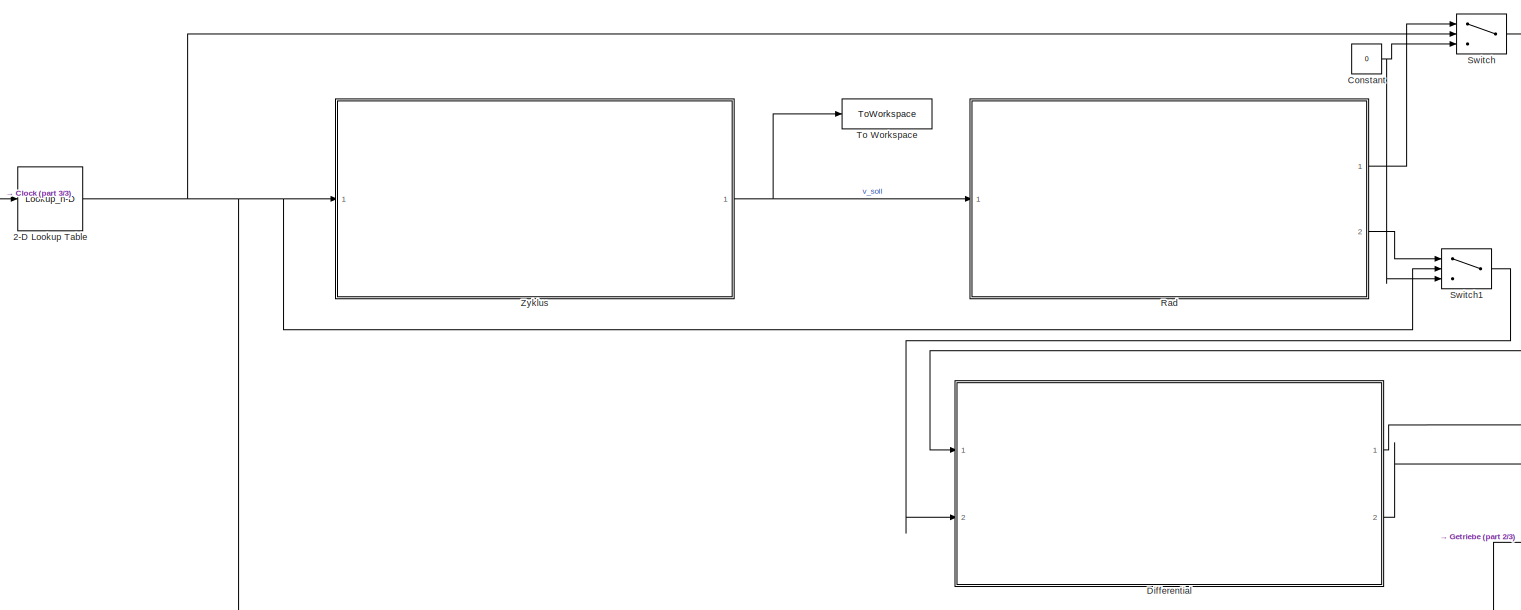
[diagram: root canvas - part 1/3, left side, full height]
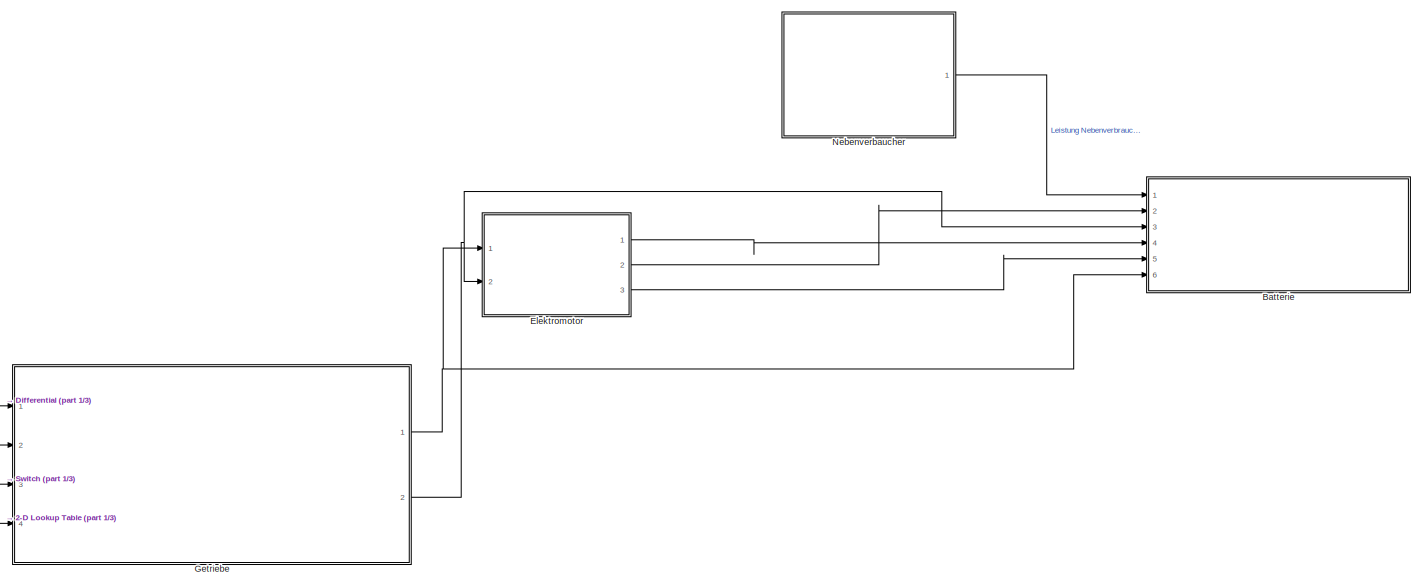
[diagram: root canvas - part 2/3, right side, full height]
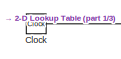
[diagram: root canvas - part 3/3, top left region]
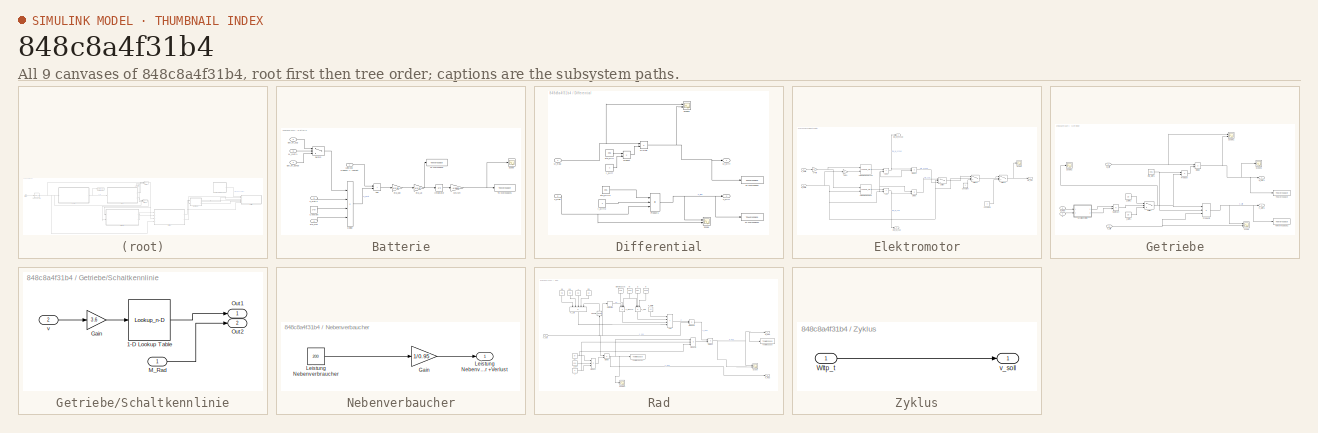
[diagram: thumbnail index - all 9 canvases of the model, root first then tree order]
MODEL slx_848c8a4f31b4
KIND model
CONFIG AbsTol = auto
CONFIG EnableMultiTasking = off
CONFIG FixedStep = 1
CONFIG MaxStep = auto
CONFIG MinStep = auto
CONFIG RelTol = 1e-3
CONFIG SampleTimeConstraint = Unconstrained
CONFIG SolverName = FixedStepAuto
CONFIG StartTime = 0.0
CONFIG StopTime = 1800
BLOCK [Lookup_n-D] 2-D Lookup Table
  BreakpointsForDimension1 = Wltp_t
  BreakpointsForDimension2 = [1:3]
  InputPortMap = u0
  InternalRulePriority = Speed
  NumberOfTableDimensions = 1
  Ports = [1, 1]
  RndMeth = Simplest
  Table = Wltp_v
BLOCK [SubSystem] Batterie
  Ports = [6]
  RequestExecContextInheritance = off
BLOCK [Sum] Batterie/Add
  IconShape = rectangular
  Ports = [2, 1]
BLOCK [Constant] Batterie/Constant
  Value = 2*pi
BLOCK [Product] Batterie/Divide
  Inputs = ***/
  Ports = [4, 1]
BLOCK [Inport] Batterie/EM_M_Schub
  Port = 2
BLOCK [Inport] Batterie/EM_M_zug
  Port = 5
BLOCK [Integrator] Batterie/Integrator
  Ports = [1, 1]
BLOCK [Inport] Batterie/Leistung Nebenverbaucher +Verlust
BLOCK [Inport] Batterie/M_Getr1
  Port = 6
BLOCK [Scope] Batterie/Scope
  Floating = off
  NumInputPorts = 1
  Ports = [1]
  ScopeSpecificationString = Simulink.scopes.TimeScopeBlockCfg('CurrentConfiguration', extmgr.ConfigurationSet(extmgr.Configuration('Core','General UI',true),extmgr.Configuration('Core','Source UI',true),extmgr.Configuration('Sources','WiredSimulink',true,'DataLoggingVariableName','ScopeData1'),extmgr.Configuration('Visuals','Time Domain',true,'SerializedDisplays',{struct('MinYLimReal','-2300.46075','MaxYLimReal','255.60675',...<+1430ch>
BLOCK [Switch] Batterie/Switch
  Criteria = u2 > Threshold
  InputSameDT = off
  SaturateOnIntegerOverflow = off
BLOCK [ToWorkspace] Batterie/To Workspace
  FixptAsFi = on
  MaxDataPoints = inf
  Ports = [1]
  SampleTime = -1
  SaveFormat = Timeseries
  VariableName = Leistung
BLOCK [ToWorkspace] Batterie/To Workspace1
  FixptAsFi = on
  MaxDataPoints = inf
  Ports = [1]
  SampleTime = -1
  SaveFormat = Timeseries
  VariableName = Ladestand
BLOCK [Gain] Batterie/Ws//Wh
  Gain = -1/3600
BLOCK [Gain] Batterie/eta_LE
  Gain = 1/0.97
BLOCK [Gain] Batterie/eta_bat
  Gain = 1/0.95
BLOCK [Inport] Batterie/eta_mot
  Port = 4
BLOCK [Inport] Batterie/n_Getr1
  Port = 3
BLOCK [Clock] Clock
  Decimation = 1
BLOCK [Constant] Constant
  Value = 0
BLOCK [SubSystem] Differential
  Ports = [2, 2]
  RequestExecContextInheritance = off
BLOCK [Product] Differential/Divide
  Inputs = */
  Ports = [2, 1]
BLOCK [Outport] Differential/M_Diff
BLOCK [Inport] Differential/M_Rad
BLOCK [Product] Differential/Product
  Ports = [2, 1]
BLOCK [Product] Differential/Product1
  Inputs = 3
  Ports = [3, 1]
BLOCK [Scope] Differential/Scope
  Floating = off
  NumInputPorts = 2
  Ports = [2]
  ScopeSpecificationString = Simulink.scopes.TimeScopeBlockCfg('CurrentConfiguration', extmgr.ConfigurationSet(extmgr.Configuration('Core','General UI',true),extmgr.Configuration('Core','Source UI',true),extmgr.Configuration('Sources','WiredSimulink',true,'DataLoggingVariableName','ScopeData1'),extmgr.Configuration('Visuals','Time Domain',true,'SerializedDisplays',{struct('MinYLimReal','-8.10956','MaxYLimReal','72.986','YLabe...<+1394ch>
BLOCK [Scope] Differential/Scope1
  Floating = off
  NumInputPorts = 2
  Ports = [2]
  ScopeSpecificationString = Simulink.scopes.TimeScopeBlockCfg('CurrentConfiguration', extmgr.ConfigurationSet(extmgr.Configuration('Core','General UI',true),extmgr.Configuration('Core','Source UI',true),extmgr.Configuration('Sources','WiredSimulink',true,'DataLoggingVariableName','ScopeData2'),extmgr.Configuration('Visuals','Time Domain',true,'SerializedDisplays',{struct('MinYLimReal','-868.40016','MaxYLimReal','1089.79286',...<+1433ch>
BLOCK [ToWorkspace] Differential/To Workspace
  FixptAsFi = on
  MaxDataPoints = inf
  Ports = [1]
  SampleTime = -1
  SaveFormat = Timeseries
  VariableName = M_Diff
BLOCK [ToWorkspace] Differential/To Workspace1
  FixptAsFi = on
  MaxDataPoints = inf
  Ports = [1]
  SampleTime = -1
  SaveFormat = Timeseries
  VariableName = n_Diff
BLOCK [Constant] Differential/eta_Diff
  Value = 0.95
BLOCK [Constant] Differential/eta_Diff2
  Value = 0.95
BLOCK [Constant] Differential/i_Diff
  Value = 4
BLOCK [Constant] Differential/i_Diff2
  Value = 4
BLOCK [Outport] Differential/n_Diff
  Port = 2
BLOCK [Inport] Differential/n_Rad
  Port = 2
BLOCK [SubSystem] Elektromotor
  Ports = [2, 3]
  RequestExecContextInheritance = off
BLOCK [Sum] Elektromotor/Add
  IconShape = rectangular
  Ports = [2, 1]
BLOCK [Sum] Elektromotor/Add1
  IconShape = rectangular
  Ports = [2, 1]
BLOCK [Constant] Elektromotor/Constant
BLOCK [Constant] Elektromotor/Constant1
BLOCK [Product] Elektromotor/Divide
  Inputs = */
  Ports = [2, 1]
BLOCK [Product] Elektromotor/Divide1
  Inputs = */
  Ports = [2, 1]
BLOCK [Outport] Elektromotor/EM_M_schub
  Port = 2
BLOCK [Outport] Elektromotor/EM_M_zug
  Port = 3
BLOCK [Gain] Elektromotor/Gain1
  Gain = -1
BLOCK [Inport] Elektromotor/M_Getr1
BLOCK [Scope] Elektromotor/Scope
  Floating = off
  NumInputPorts = 1
  Ports = [1]
  ScopeSpecificationString = Simulink.scopes.TimeScopeBlockCfg('CurrentConfiguration', extmgr.ConfigurationSet(extmgr.Configuration('Core','General UI',true),extmgr.Configuration('Core','Source UI',true),extmgr.Configuration('Sources','WiredSimulink',true,'DataLoggingVariableName','ScopeData1'),extmgr.Configuration('Visuals','Time Domain',true,'SerializedDisplays',{struct('MinYLimReal','-0.12315','MaxYLimReal','1.12479','YLab...<+1419ch>
BLOCK [Switch] Elektromotor/Switch
  Criteria = u2 > Threshold
  InputSameDT = off
  SaturateOnIntegerOverflow = off
BLOCK [Switch] Elektromotor/Switch1
  Criteria = u2 ~= 0
  InputSameDT = off
  SaturateOnIntegerOverflow = off
BLOCK [Switch] Elektromotor/Switch2
  InputSameDT = off
  SaturateOnIntegerOverflow = off
BLOCK [Lookup_n-D] Elektromotor/Verlustmoment Schub
  BreakpointsForDimension1 = n_achse
  BreakpointsForDimension2 = M_achse
  InputPortMap = u0,u1
  InternalRulePriority = Speed
  Ports = [2, 1]
  RndMeth = Simplest
  Table = em.M_loss_gen_grid
BLOCK [Lookup_n-D] Elektromotor/Verlustmoment Zug 
  BreakpointsForDimension1 = n_achse
  BreakpointsForDimension2 = M_achse
  InputPortMap = u0,u1
  InternalRulePriority = Speed
  Ports = [2, 1]
  RndMeth = Simplest
  Table = em.M_loss_mot_grid
BLOCK [Outport] Elektromotor/eta_mot
BLOCK [Inport] Elektromotor/n_Getr1
  Port = 2
BLOCK [Gain] Elektromotor/s -> min
  Gain = 60
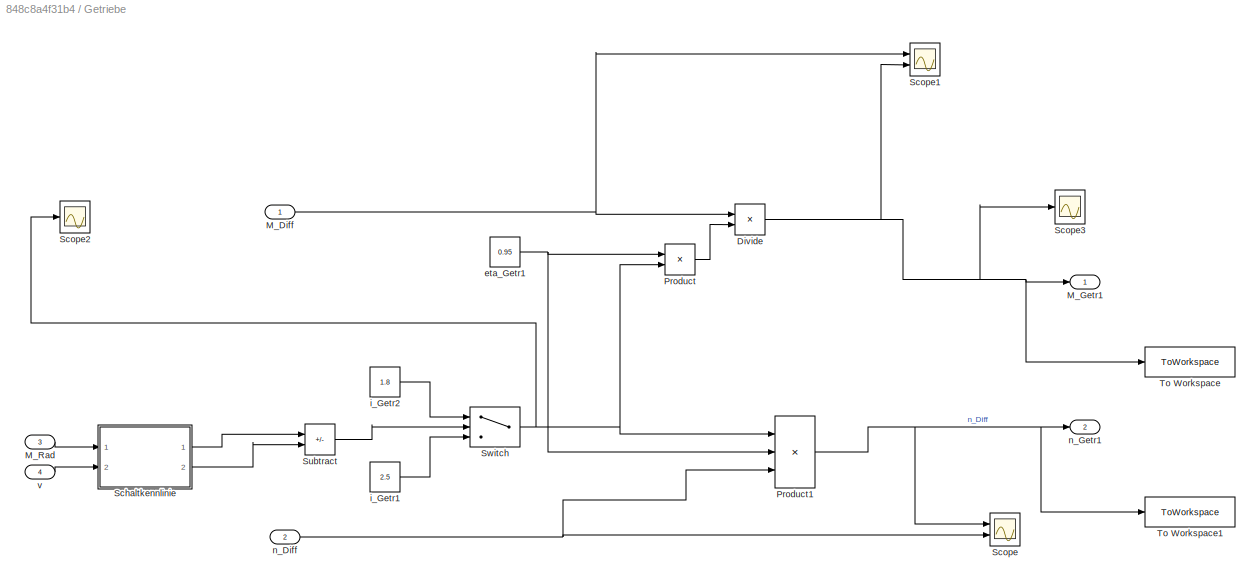
BLOCK [SubSystem] Getriebe
  Ports = [4, 2]
  RequestExecContextInheritance = off
BLOCK [Product] Getriebe/Divide
  Inputs = */
  Ports = [2, 1]
BLOCK [Inport] Getriebe/M_Diff
BLOCK [Outport] Getriebe/M_Getr1
BLOCK [Inport] Getriebe/M_Rad
  Port = 3
BLOCK [Product] Getriebe/Product
  Ports = [2, 1]
BLOCK [Product] Getriebe/Product1
  Inputs = 3
  Ports = [3, 1]
BLOCK [SubSystem] Getriebe/Schaltkennlinie
  Ports = [2, 2]
  RequestExecContextInheritance = off
BLOCK [Lookup_n-D] Getriebe/Schaltkennlinie/1-D Lookup Table
  BreakpointsForDimension1 = schalt_v
  InputPortMap = u0
  InternalRulePriority = Speed
  NumberOfTableDimensions = 1
  Ports = [1, 1]
  RndMeth = Simplest
  Table = schalt_M
BLOCK [Gain] Getriebe/Schaltkennlinie/Gain
  Gain = 3.6
BLOCK [Inport] Getriebe/Schaltkennlinie/M_Rad
BLOCK [Outport] Getriebe/Schaltkennlinie/Out1
BLOCK [Outport] Getriebe/Schaltkennlinie/Out2
  Port = 2
BLOCK [Inport] Getriebe/Schaltkennlinie/v
  Port = 2
BLOCK [Scope] Getriebe/Scope
  Floating = off
  NumInputPorts = 2
  Ports = [2]
  ScopeSpecificationString = Simulink.scopes.TimeScopeBlockCfg('CurrentConfiguration', extmgr.ConfigurationSet(extmgr.Configuration('Core','General UI',true),extmgr.Configuration('Core','Source UI',true),extmgr.Configuration('Sources','WiredSimulink',true,'DataLoggingVariableName','ScopeData1'),extmgr.Configuration('Visuals','Time Domain',true,'SerializedDisplays',{struct('MinYLimReal','-13.86734','MaxYLimReal','124.80606','Y...<+1422ch>
BLOCK [Scope] Getriebe/Scope1
  Floating = off
  NumInputPorts = 2
  Ports = [2]
  ScopeSpecificationString = Simulink.scopes.TimeScopeBlockCfg('CurrentConfiguration', extmgr.ConfigurationSet(extmgr.Configuration('Core','General UI',true),extmgr.Configuration('Core','Source UI',true),extmgr.Configuration('Sources','WiredSimulink',true,'DataLoggingVariableName','ScopeData2'),extmgr.Configuration('Visuals','Time Domain',true,'SerializedDisplays',{struct('MinYLimReal','-868.40016','MaxYLimReal','1089.79286',...<+1416ch>
BLOCK [Scope] Getriebe/Scope2
  Floating = off
  NumInputPorts = 1
  Ports = [1]
  ScopeSpecificationString = Simulink.scopes.TimeScopeBlockCfg('CurrentConfiguration', extmgr.ConfigurationSet(extmgr.Configuration('Core','General UI',true),extmgr.Configuration('Core','Source UI',true),extmgr.Configuration('Sources','WiredSimulink',true,'DataLoggingVariableName','ScopeData3'),extmgr.Configuration('Visuals','Time Domain',true,'SerializedDisplays',{struct('MinYLimReal','1.7125','MaxYLimReal','2.5875','YLabelR...<+1414ch>
BLOCK [Scope] Getriebe/Scope3
  Floating = off
  NumInputPorts = 1
  Ports = [1]
  ScopeSpecificationString = Simulink.scopes.TimeScopeBlockCfg('CurrentConfiguration', extmgr.ConfigurationSet(extmgr.Configuration('Core','General UI',true),extmgr.Configuration('Core','Source UI',true),extmgr.Configuration('Sources','WiredSimulink',true,'DataLoggingVariableName','ScopeData1'),extmgr.Configuration('Visuals','Time Domain',true,'SerializedDisplays',{struct('MinYLimReal','-133.64115','MaxYLimReal','167.71204','...<+1417ch>
BLOCK [Sum] Getriebe/Subtract
  IconShape = rectangular
  Inputs = +-
  Ports = [2, 1]
BLOCK [Switch] Getriebe/Switch
  Criteria = u2 > Threshold
  InputSameDT = off
  SaturateOnIntegerOverflow = off
BLOCK [ToWorkspace] Getriebe/To Workspace
  FixptAsFi = on
  MaxDataPoints = inf
  Ports = [1]
  SampleTime = -1
  SaveFormat = Timeseries
  VariableName = M_Getr1
BLOCK [ToWorkspace] Getriebe/To Workspace1
  FixptAsFi = on
  MaxDataPoints = inf
  Ports = [1]
  SampleTime = -1
  SaveFormat = Timeseries
  VariableName = n_Getr1
BLOCK [Constant] Getriebe/eta_Getr1
  Value = 0.95
BLOCK [Constant] Getriebe/i_Getr1
  Value = 2.5
BLOCK [Constant] Getriebe/i_Getr2
  Value = 1.8
BLOCK [Inport] Getriebe/n_Diff
  Port = 2
BLOCK [Outport] Getriebe/n_Getr1
  Port = 2
BLOCK [Inport] Getriebe/v
  Port = 4
BLOCK [SubSystem] Nebenverbaucher
  Ports = [0, 1]
  RequestExecContextInheritance = off
BLOCK [Gain] Nebenverbaucher/Gain
  Gain = 1/0.95
BLOCK [Outport] Nebenverbaucher/Leistung Nebenverbaucher +Verlust
BLOCK [Constant] Nebenverbaucher/Leistung Nebenverbraucher
  Value = 200
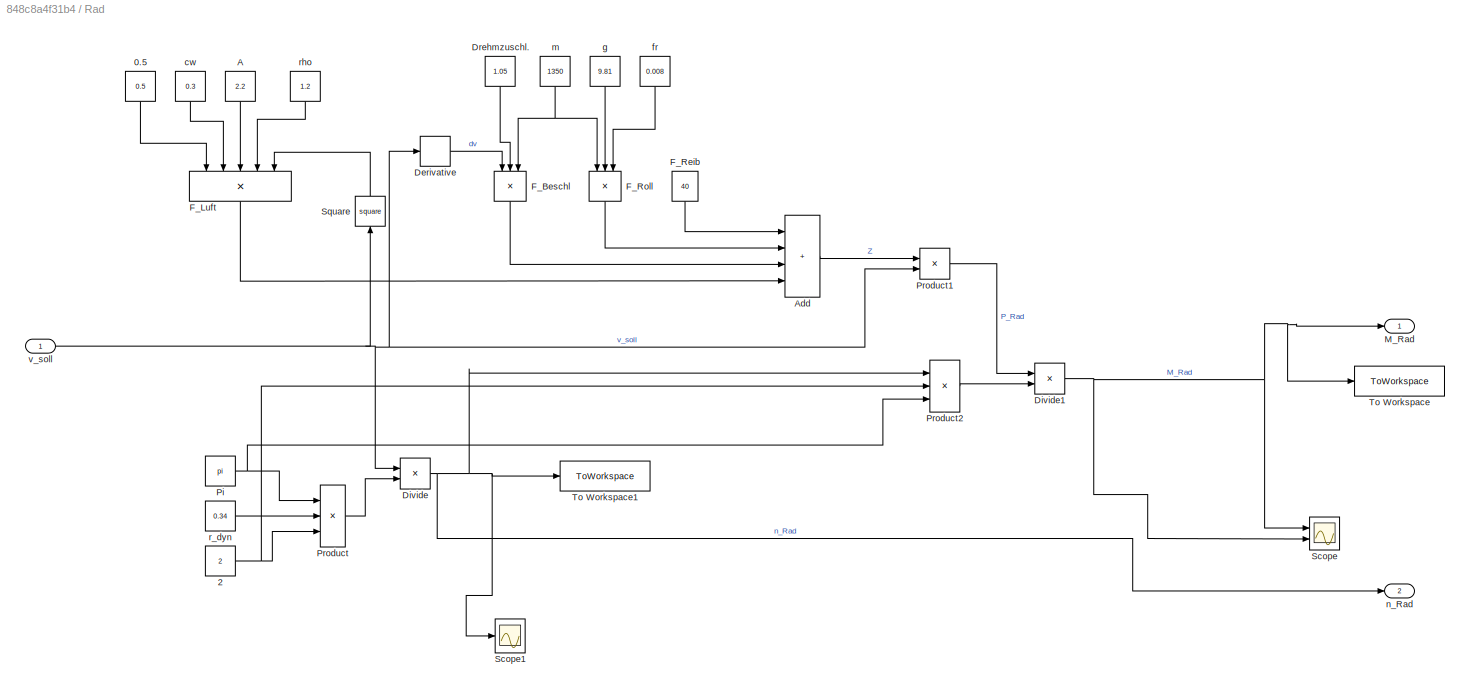
BLOCK [SubSystem] Rad
  Ports = [1, 2]
  RequestExecContextInheritance = off
BLOCK [Constant] Rad/0.5
  NameLocation = left
  Value = 0.5
BLOCK [Constant] Rad/2
  Value = 2
BLOCK [Constant] Rad/A
  NameLocation = left
  Value = 2.2
BLOCK [Sum] Rad/Add
  IconShape = rectangular
  Inputs = ++++
  Ports = [4, 1]
BLOCK [Derivative] Rad/Derivative
BLOCK [Product] Rad/Divide
  Inputs = */
  Ports = [2, 1]
BLOCK [Product] Rad/Divide1
  Inputs = */
  Ports = [2, 1]
BLOCK [Constant] Rad/Drehmzuschl.
  NameLocation = left
  Value = 1.05
BLOCK [Product] Rad/F_Beschl
  Inputs = 3
  NameLocation = left
  Ports = [3, 1]
BLOCK [Product] Rad/F_Luft
  Inputs = 5
  NameLocation = left
  Ports = [5, 1]
BLOCK [Constant] Rad/F_Reib
  NameLocation = left
  Value = 40
BLOCK [Product] Rad/F_Roll
  Inputs = 3
  NameLocation = left
  Ports = [3, 1]
BLOCK [Outport] Rad/M_Rad
BLOCK [Constant] Rad/Pi
  Value = pi
BLOCK [Product] Rad/Product
  Inputs = 3
  Ports = [3, 1]
BLOCK [Product] Rad/Product1
  Ports = [2, 1]
BLOCK [Product] Rad/Product2
  Inputs = 3
  Ports = [3, 1]
BLOCK [Scope] Rad/Scope
  Floating = off
  NumInputPorts = 2
  Ports = [2]
  ScopeSpecificationString = Simulink.scopes.TimeScopeBlockCfg('CurrentConfiguration', extmgr.ConfigurationSet(extmgr.Configuration('Core','General UI',true),extmgr.Configuration('Core','Source UI',true),extmgr.Configuration('Sources','WiredSimulink',true,'DataLoggingVariableName','ScopeData1'),extmgr.Configuration('Visuals','Time Domain',true,'SerializedDisplays',{struct('MinYLimReal','-731.27466','MaxYLimReal','1089.79286',...<+1447ch>
BLOCK [Scope] Rad/Scope1
  Floating = off
  NumInputPorts = 1
  Ports = [1]
  ScopeSpecificationString = Simulink.scopes.TimeScopeBlockCfg('CurrentConfiguration', extmgr.ConfigurationSet(extmgr.Configuration('Core','General UI',true),extmgr.Configuration('Core','Source UI',true),extmgr.Configuration('Sources','WiredSimulink',true,'DataLoggingVariableName','ScopeData2'),extmgr.Configuration('Visuals','Time Domain',true,'SerializedDisplays',{struct('MinYLimReal','-2.13409','MaxYLimReal','19.20684','YLa...<+1450ch>
BLOCK [Math] Rad/Square
  NameLocation = right
  Operator = square
  Ports = [1, 1]
BLOCK [ToWorkspace] Rad/To Workspace
  FixptAsFi = on
  MaxDataPoints = inf
  Ports = [1]
  SampleTime = -1
  SaveFormat = Timeseries
  VariableName = M_Rad
BLOCK [ToWorkspace] Rad/To Workspace1
  FixptAsFi = on
  MaxDataPoints = inf
  Ports = [1]
  SampleTime = -1
  Save2DSignal = 2-D array (concatenate along first dimension)
  VariableName = n_rad
BLOCK [Constant] Rad/cw
  NameLocation = left
  Value = 0.3
BLOCK [Constant] Rad/fr
  NameLocation = left
  Value = 0.008
BLOCK [Constant] Rad/g
  NameLocation = left
  Value = 9.81
BLOCK [Constant] Rad/m
  NameLocation = left
  Value = 1350
BLOCK [Outport] Rad/n_Rad
  Port = 2
BLOCK [Constant] Rad/r_dyn
  Value = 0.34
BLOCK [Constant] Rad/rho
  NameLocation = left
  Value = 1.2
BLOCK [Inport] Rad/v_soll
BLOCK [Switch] Switch
  Criteria = u2 ~= 0
  InputSameDT = off
  SaturateOnIntegerOverflow = off
BLOCK [Switch] Switch1
  Criteria = u2 > Threshold
  InputSameDT = off
  SaturateOnIntegerOverflow = off
BLOCK [ToWorkspace] To Workspace
  FixptAsFi = on
  MaxDataPoints = inf
  Ports = [1]
  SampleTime = -1
  SaveFormat = Timeseries
  VariableName = v_soll
BLOCK [SubSystem] Zyklus
  Ports = [1, 1]
  RequestExecContextInheritance = off
BLOCK [Inport] Zyklus/Wltp_t
BLOCK [Outport] Zyklus/v_soll
NET 2-D Lookup Table:1 -> Getriebe:4, Switch1:2, Switch:2, Zyklus:1
LINE Batterie/Add:1 -> Batterie/eta_bat:1
LINE Batterie/Constant:1 -> Batterie/Divide:3
LINE Batterie/Divide:1 -> Batterie/Add:2
LINE Batterie/EM_M_Schub:1 -> Batterie/Switch:3
LINE Batterie/EM_M_zug:1 -> Batterie/Switch:1
LINE Batterie/Integrator:1 -> Batterie/Ws//Wh:1
LINE Batterie/Leistung Nebenverbaucher +Verlust:1 -> Batterie/Add:1
LINE Batterie/M_Getr1:1 -> Batterie/Switch:2
LINE Batterie/Switch:1 -> Batterie/Divide:1
NET Batterie/Ws//Wh:1 -> Batterie/Scope:1, Batterie/To Workspace1:1
NET Batterie/eta_LE:1 -> Batterie/Integrator:1, Batterie/To Workspace:1
LINE Batterie/eta_bat:1 -> Batterie/eta_LE:1
LINE Batterie/eta_mot:1 -> Batterie/Divide:4
LINE Batterie/n_Getr1:1 -> Batterie/Divide:2
LINE Clock:1 -> 2-D Lookup Table:1
NET Constant:1 -> Switch1:3, Switch:3
NET Differential/Divide:1 -> Differential/M_Diff:1, Differential/Scope1:2, Differential/To Workspace:1
NET Differential/M_Rad:1 -> Differential/Divide:1, Differential/Scope1:1
NET Differential/Product1:1 -> Differential/Scope:1, Differential/To Workspace1:1, Differential/n_Diff:1
LINE Differential/Product:1 -> Differential/Divide:2
LINE Differential/eta_Diff2:1 -> Differential/Product1:1
LINE Differential/eta_Diff:1 -> Differential/Product:1
LINE Differential/i_Diff2:1 -> Differential/Product1:2
LINE Differential/i_Diff:1 -> Differential/Product:2
NET Differential/n_Rad:1 -> Differential/Product1:3, Differential/Scope:2
LINE Differential:1 -> Getriebe:1
LINE Differential:2 -> Getriebe:2
NET Elektromotor/Add1:1 -> Elektromotor/Divide1:1, Elektromotor/EM_M_schub:1
NET Elektromotor/Add:1 -> Elektromotor/Divide:2, Elektromotor/EM_M_zug:1
LINE Elektromotor/Constant1:1 -> Elektromotor/Switch2:3
LINE Elektromotor/Constant:1 -> Elektromotor/Switch1:3
LINE Elektromotor/Divide1:1 -> Elektromotor/Switch:3
LINE Elektromotor/Divide:1 -> Elektromotor/Switch:1
LINE Elektromotor/Gain1:1 -> Elektromotor/Verlustmoment Schub:2
NET Elektromotor/M_Getr1:1 -> Elektromotor/Add1:2, Elektromotor/Add:2, Elektromotor/Divide1:2, Elektromotor/Divide:1, Elektromotor/Gain1:1, Elektromotor/Switch1:2, Elektromotor/Switch:2, Elektromotor/Verlustmoment Zug :2
NET Elektromotor/Switch1:1 -> Elektromotor/Switch2:1, Elektromotor/Switch2:2
NET Elektromotor/Switch2:1 -> Elektromotor/Scope:1, Elektromotor/eta_mot:1
LINE Elektromotor/Switch:1 -> Elektromotor/Switch1:1
LINE Elektromotor/Verlustmoment Schub:1 -> Elektromotor/Add1:1
LINE Elektromotor/Verlustmoment Zug :1 -> Elektromotor/Add:1
LINE Elektromotor/n_Getr1:1 -> Elektromotor/s -> min:1
NET Elektromotor/s -> min:1 -> Elektromotor/Verlustmoment Schub:1, Elektromotor/Verlustmoment Zug :1
LINE Elektromotor:1 -> Batterie:4
LINE Elektromotor:2 -> Batterie:2
LINE Elektromotor:3 -> Batterie:5
NET Getriebe/Divide:1 -> Getriebe/M_Getr1:1, Getriebe/Scope1:2, Getriebe/Scope3:1, Getriebe/To Workspace:1
NET Getriebe/M_Diff:1 -> Getriebe/Divide:1, Getriebe/Scope1:1
LINE Getriebe/M_Rad:1 -> Getriebe/Schaltkennlinie:1
NET Getriebe/Product1:1 -> Getriebe/Scope:1, Getriebe/To Workspace1:1, Getriebe/n_Getr1:1
LINE Getriebe/Product:1 -> Getriebe/Divide:2
LINE Getriebe/Schaltkennlinie/1-D Lookup Table:1 -> Getriebe/Schaltkennlinie/Out1:1
LINE Getriebe/Schaltkennlinie/Gain:1 -> Getriebe/Schaltkennlinie/1-D Lookup Table:1
LINE Getriebe/Schaltkennlinie/M_Rad:1 -> Getriebe/Schaltkennlinie/Out2:1
LINE Getriebe/Schaltkennlinie/v:1 -> Getriebe/Schaltkennlinie/Gain:1
LINE Getriebe/Schaltkennlinie:1 -> Getriebe/Subtract:1
LINE Getriebe/Schaltkennlinie:2 -> Getriebe/Subtract:2
LINE Getriebe/Subtract:1 -> Getriebe/Switch:2
NET Getriebe/Switch:1 -> Getriebe/Product1:1, Getriebe/Product:2, Getriebe/Scope2:1
NET Getriebe/eta_Getr1:1 -> Getriebe/Product1:2, Getriebe/Product:1
LINE Getriebe/i_Getr1:1 -> Getriebe/Switch:3
LINE Getriebe/i_Getr2:1 -> Getriebe/Switch:1
NET Getriebe/n_Diff:1 -> Getriebe/Product1:3, Getriebe/Scope:2
LINE Getriebe/v:1 -> Getriebe/Schaltkennlinie:2
NET Getriebe:1 -> Batterie:6, Elektromotor:1
NET Getriebe:2 -> Batterie:3, Elektromotor:2
LINE Nebenverbaucher/Gain:1 -> Nebenverbaucher/Leistung Nebenverbaucher +Verlust:1
LINE Nebenverbaucher/Leistung Nebenverbraucher:1 -> Nebenverbaucher/Gain:1
LINE Nebenverbaucher:1 -> Batterie:1
LINE Rad/0.5:1 -> Rad/F_Luft:1
NET Rad/2:1 -> Rad/Product2:2, Rad/Product:3
LINE Rad/A:1 -> Rad/F_Luft:3
LINE Rad/Add:1 -> Rad/Product1:1
LINE Rad/Derivative:1 -> Rad/F_Beschl:1
NET Rad/Divide1:1 -> Rad/M_Rad:1, Rad/Scope:1, Rad/Scope:2, Rad/To Workspace:1
NET Rad/Divide:1 -> Rad/Product2:1, Rad/Scope1:1, Rad/To Workspace1:1, Rad/n_Rad:1
LINE Rad/Drehmzuschl.:1 -> Rad/F_Beschl:2
LINE Rad/F_Beschl:1 -> Rad/Add:3
LINE Rad/F_Luft:1 -> Rad/Add:4
LINE Rad/F_Reib:1 -> Rad/Add:1
LINE Rad/F_Roll:1 -> Rad/Add:2
NET Rad/Pi:1 -> Rad/Product2:3, Rad/Product:1
LINE Rad/Product1:1 -> Rad/Divide1:1
LINE Rad/Product2:1 -> Rad/Divide1:2
LINE Rad/Product:1 -> Rad/Divide:2
LINE Rad/Square:1 -> Rad/F_Luft:5
LINE Rad/cw:1 -> Rad/F_Luft:2
LINE Rad/fr:1 -> Rad/F_Roll:3
LINE Rad/g:1 -> Rad/F_Roll:2
NET Rad/m:1 -> Rad/F_Beschl:3, Rad/F_Roll:1
LINE Rad/r_dyn:1 -> Rad/Product:2
LINE Rad/rho:1 -> Rad/F_Luft:4
NET Rad/v_soll:1 -> Rad/Derivative:1, Rad/Divide:1, Rad/Product1:2, Rad/Square:1
LINE Rad:1 -> Switch:1
LINE Rad:2 -> Switch1:1
LINE Switch1:1 -> Differential:2
NET Switch:1 -> Differential:1, Getriebe:3
LINE Zyklus/Wltp_t:1 -> Zyklus/v_soll:1
NET Zyklus:1 -> Rad:1, To Workspace:1
note: NET lines group one-source signal fan-out (src -> all destinations, sorted); 1:1 wires keep LINE
